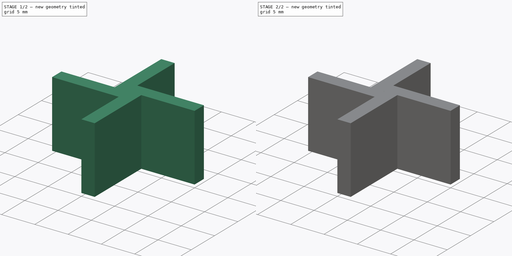
[diagram: build sequence overview — one tinted view per stage of 2, left to right]
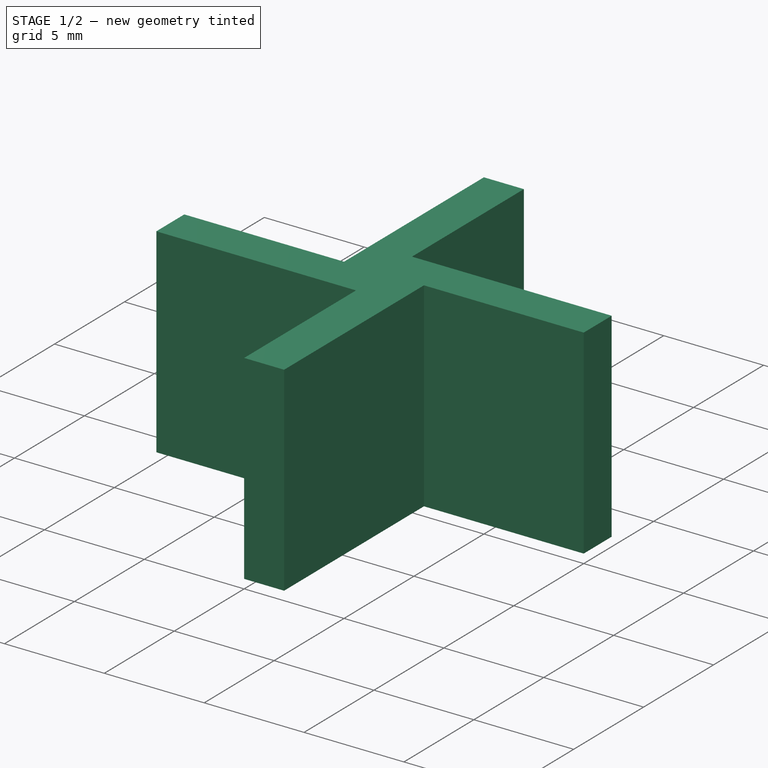
[diagram: stage 1 of 2 — iso view after this stage's code; geometry added in this stage tinted green]
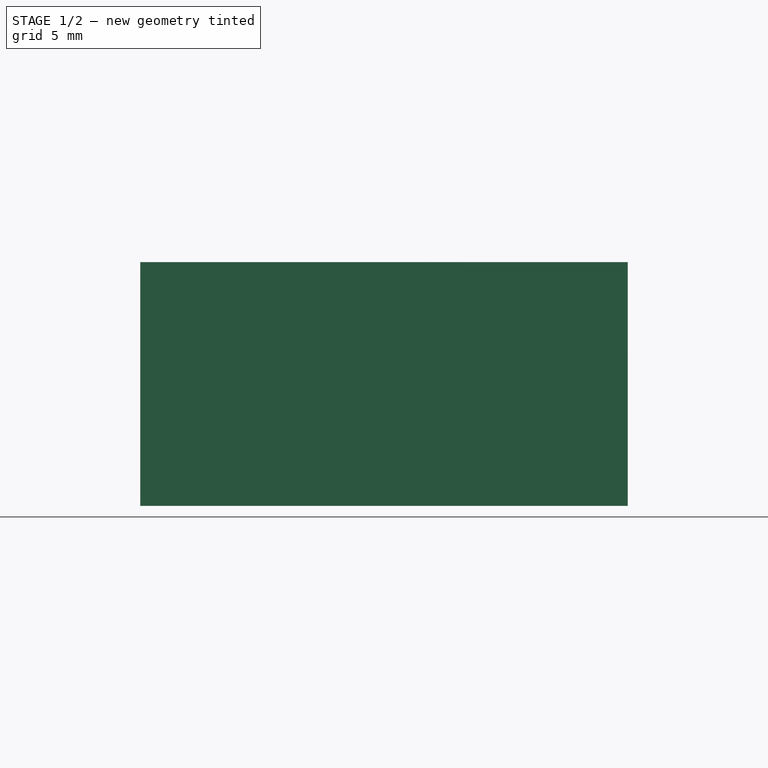
[diagram: stage 1 of 2 — front view after this stage's code; geometry added in this stage tinted green]
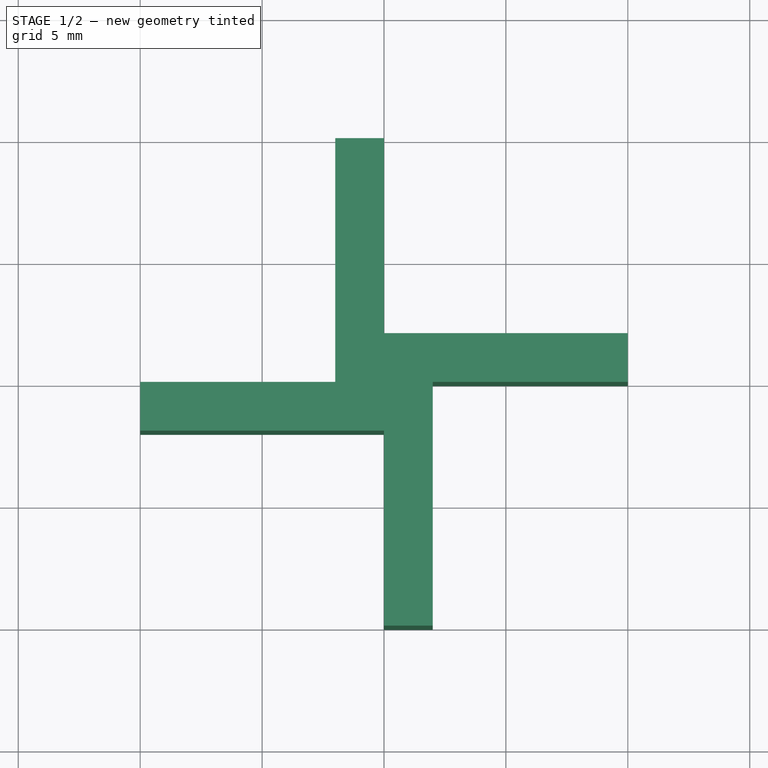
[diagram: stage 1 of 2 — top view after this stage's code; geometry added in this stage tinted green]
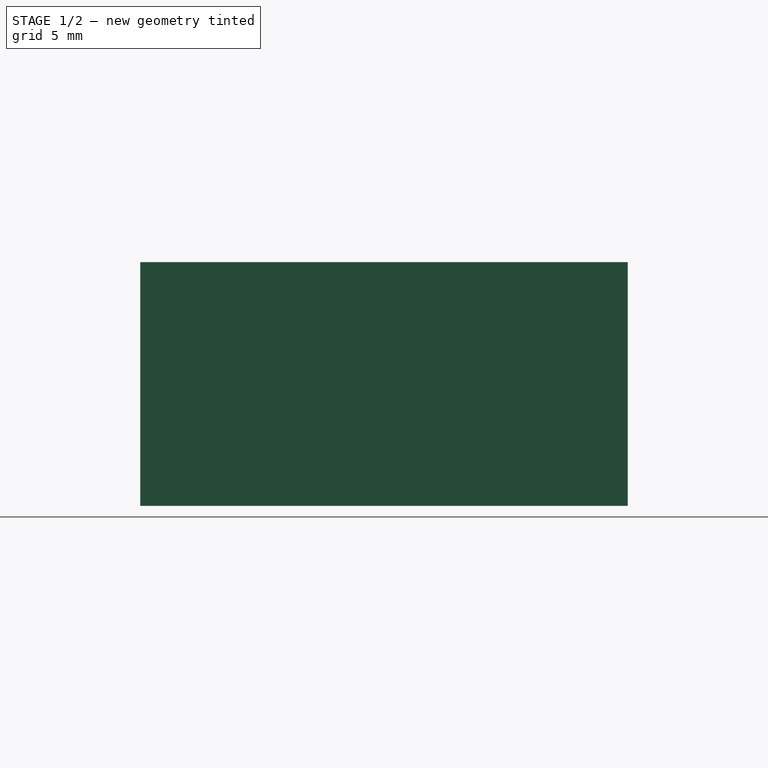
[diagram: stage 1 of 2 — right view after this stage's code; geometry added in this stage tinted green]
FCSTD DOCUMENT  (FreeCAD 0.19R24276 (Git))
Label: Std_XYMeasurementBlock
License: All rights reserved
LicenseURL: http://en.wikipedia.org/wiki/All_rights_reserved
objects: Sketcher::SketchObject×3, PartDesign::Pocket×2, PartDesign::Pad×1, PartDesign::Body×1, App::Part×1
note: 10 computed .brp shape members not serialized (recipe doc carries the construction recipe); baked Part::Feature solids carry a one-line shape summary decoded from their .brp

FEATURE [Sketcher::SketchObject] Sketch
  FullyConstrained = true
  MapMode = 5
  Support = -> [XY_Plane]
  sketch-geometry (6):
    g0: LineSegment StartX=-10 StartY=10 StartZ=0 EndX=10 EndY=10 EndZ=0
    g1: LineSegment StartX=10 StartY=10 StartZ=0 EndX=10 EndY=-10 EndZ=0
    g2: LineSegment StartX=10 StartY=-10 StartZ=0 EndX=-10 EndY=-10 EndZ=0
    g3: LineSegment StartX=-10 StartY=-10 StartZ=0 EndX=-10 EndY=10 EndZ=0
    g4: LineSegment StartX=0 StartY=0 StartZ=0 EndX=0 EndY=10 EndZ=0
    g5: LineSegment StartX=0 StartY=0 StartZ=0 EndX=10 EndY=0 EndZ=0
  constraints (16):
    c: Coincident(g0,g1)
    c: Coincident(g1,g2)
    c: Coincident(g2,g3)
    c: Coincident(g3,g0)
    c: Horizontal(g0)
    c: Horizontal(g2)
    c: Vertical(g1)
    c: Vertical(g3)
    c: Coincident(g4,g-1)
    c: PointOnObject(g4,g-2)
    c: Coincident(g5,g-1)
    c: PointOnObject(g5,g-1)
    c: Symmetric(g0,g0,g4)
    c: Symmetric(g0,g1,g5)
    c: Equal(g0,g1)
    c: Distance(g0) = 20
FEATURE [PartDesign::Pad] Pad
  Direction = (1,1,1)
  Length = 10
  Length2 = 100
  Profile = -> Sketch
  Type = 0
FEATURE [Sketcher::SketchObject] Sketch001
  FullyConstrained = true
  MapMode = 5
  Support = -> [XY_Plane]
  sketch-geometry (16):
    g0: LineSegment StartX=0 StartY=17 StartZ=0 EndX=15 EndY=17 EndZ=0
    g1: LineSegment StartX=15 StartY=17 StartZ=0 EndX=15 EndY=2 EndZ=0
    g2: LineSegment StartX=15 StartY=2 StartZ=0 EndX=0 EndY=2 EndZ=0
    g3: LineSegment StartX=0 StartY=2 StartZ=0 EndX=0 EndY=17 EndZ=0
    g4: LineSegment StartX=-17 StartY=0 StartZ=0 EndX=-2 EndY=0 EndZ=0
    g5: LineSegment StartX=-2 StartY=0 StartZ=0 EndX=-2 EndY=15 EndZ=0
    g6: LineSegment StartX=-2 StartY=15 StartZ=0 EndX=-17 EndY=15 EndZ=0
    g7: LineSegment StartX=-17 StartY=15 StartZ=0 EndX=-17 EndY=0 EndZ=0
    g8: LineSegment StartX=17 StartY=0 StartZ=0 EndX=2 EndY=0 EndZ=0
    g9: LineSegment StartX=2 StartY=0 StartZ=0 EndX=2 EndY=-15 EndZ=0
    g10: LineSegment StartX=2 StartY=-15 StartZ=0 EndX=17 EndY=-15 EndZ=0
    g11: LineSegment StartX=17 StartY=-15 StartZ=0 EndX=17 EndY=0 EndZ=0
    g12: LineSegment StartX=0 StartY=-17 StartZ=0 EndX=-15 EndY=-17 EndZ=0
    g13: LineSegment StartX=-15 StartY=-17 StartZ=0 EndX=-15 EndY=-2 EndZ=0
    g14: LineSegment StartX=-15 StartY=-2 StartZ=0 EndX=0 EndY=-2 EndZ=0
    g15: LineSegment StartX=0 StartY=-2 StartZ=0 EndX=0 EndY=-17 EndZ=0
  constraints (48):
    c: Coincident(g0,g1)
    c: Coincident(g1,g2)
    c: Coincident(g2,g3)
    c: Coincident(g3,g0)
    c: Horizontal(g0)
    c: Horizontal(g2)
    c: Vertical(g1)
    c: Vertical(g3)
    c: PointOnObject(g0,g-2)
    c: Coincident(g4,g5)
    c: Coincident(g5,g6)
    c: Coincident(g6,g7)
    c: Coincident(g7,g4)
    c: Horizontal(g4)
    c: Horizontal(g6)
    c: Vertical(g5)
    c: Vertical(g7)
    c: PointOnObject(g4,g-1)
    c: Coincident(g8,g9)
    c: Coincident(g9,g10)
    c: Coincident(g10,g11)
    c: Coincident(g11,g8)
    c: Horizontal(g8)
    c: Horizontal(g10)
    c: Vertical(g9)
    c: Vertical(g11)
    c: PointOnObject(g8,g-1)
    c: Coincident(g12,g13)
    c: Coincident(g13,g14)
    c: Coincident(g14,g15)
    c: Coincident(g15,g12)
    c: Horizontal(g12)
    c: Horizontal(g14)
    c: Vertical(g13)
    c: Vertical(g15)
    c: PointOnObject(g12,g-2)
    c: DistanceY(g8,g1) = 2
    c: DistanceY(g13,g4) = 2
    c: DistanceX(g12,g9) = 2
    c: DistanceX(g5,g0) = 2
    c: Equal(g6,g0)
    c: Equal(g7,g1)
    c: Equal(g6,g12)
    c: Equal(g0,g10)
    c: Equal(g13,g11)
    c: Equal(g11,g1)
    c: Distance(g6) = 15
    c: Distance(g1) = 15
FEATURE [PartDesign::Pocket] Pocket
  BaseFeature = -> Pad
  Length = 9
  Length2 = 100
  Profile = -> Sketch001
  Reversed = true
  Type = 1
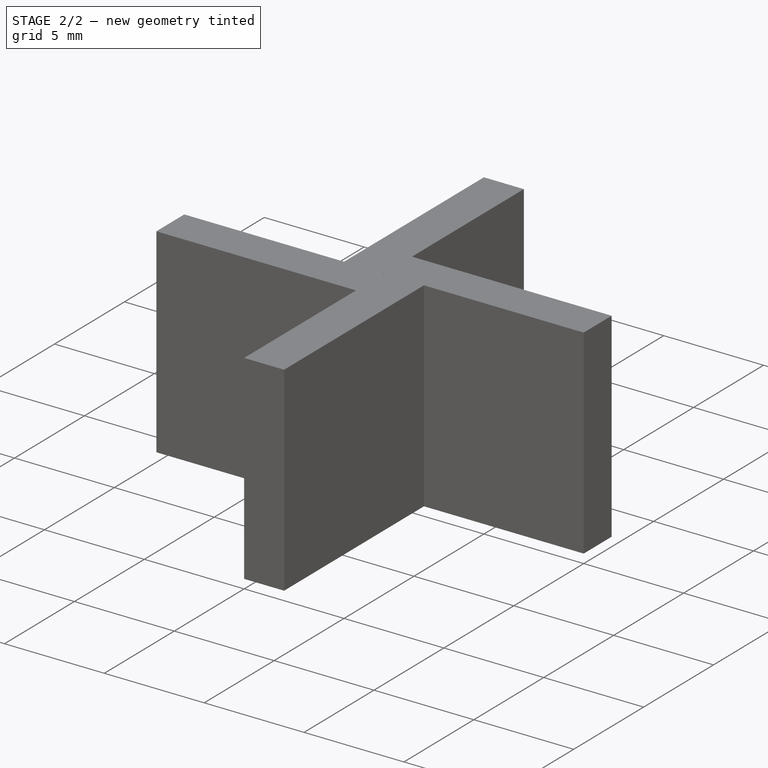
[diagram: stage 2 of 2 — iso view after this stage's code; geometry added in this stage tinted green]
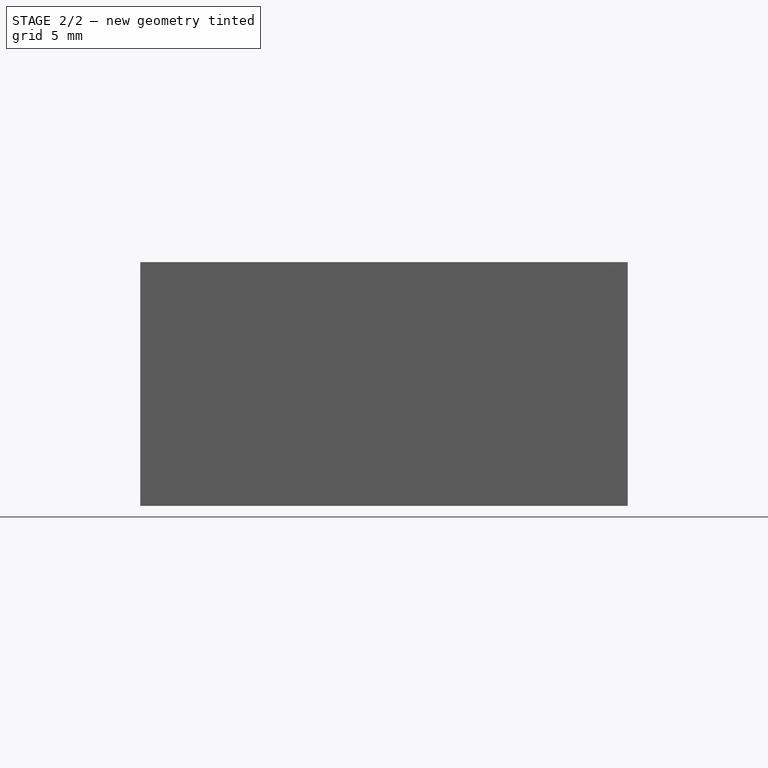
[diagram: stage 2 of 2 — front view after this stage's code; geometry added in this stage tinted green]
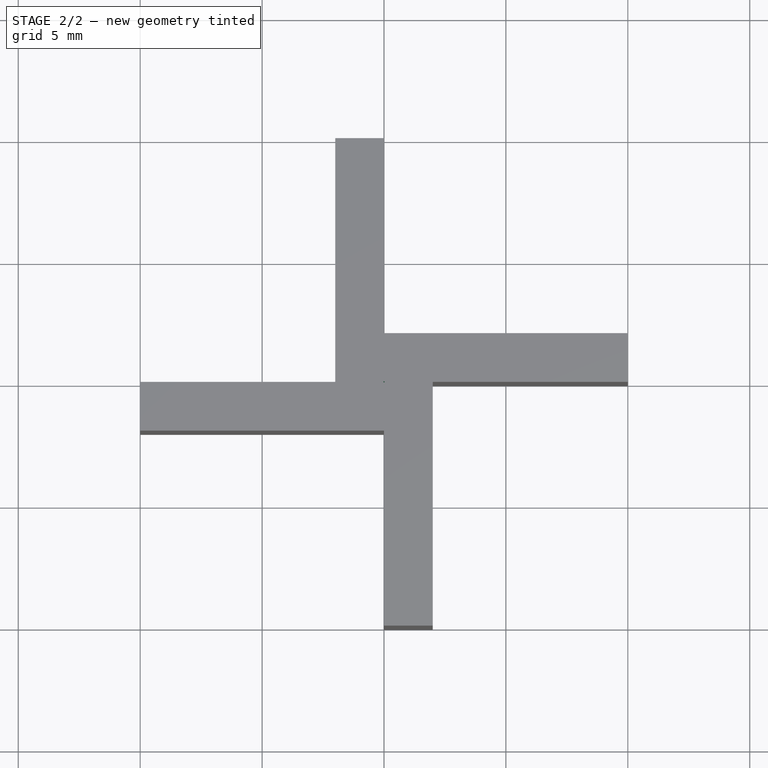
[diagram: stage 2 of 2 — top view after this stage's code; geometry added in this stage tinted green]
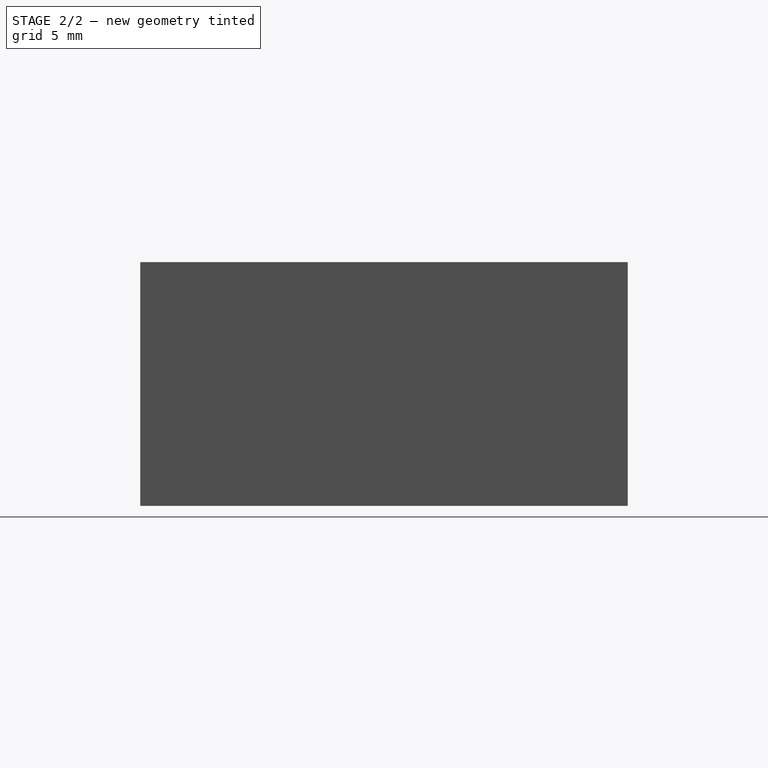
[diagram: stage 2 of 2 — right view after this stage's code; geometry added in this stage tinted green]
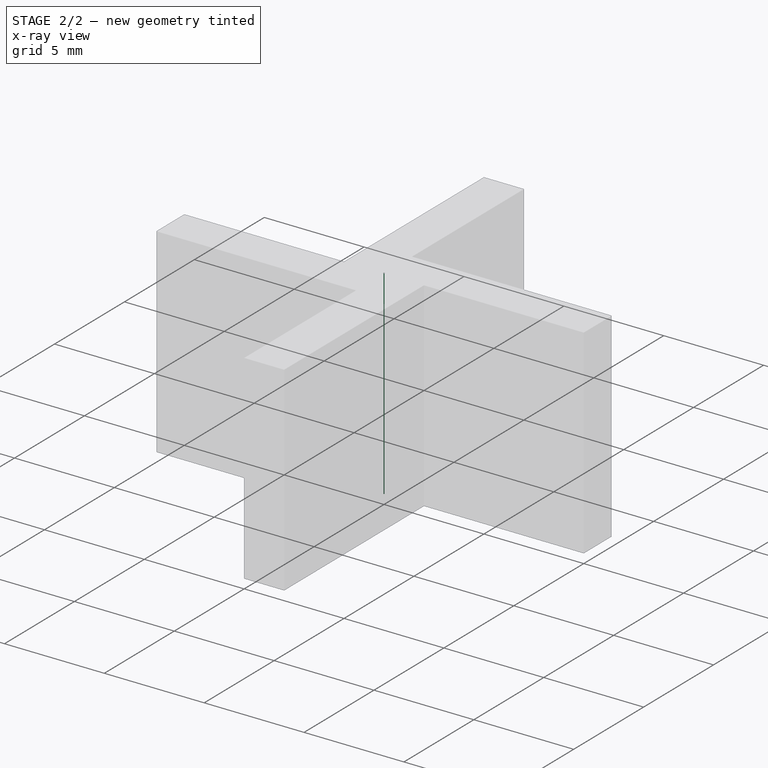
[diagram: stage 2 of 2 — x-ray composite at the iso view; earlier geometry ghosted, this stage's added geometry solid]
FEATURE [Sketcher::SketchObject] Sketch002
  FullyConstrained = true
  MapMode = 5
  Support = -> [XY_Plane001]
  sketch-geometry (1):
    g0: Circle CenterX=0 CenterY=0 CenterZ=0 NormalX=0 NormalY=0 NormalZ=1 AngleXU=0 Radius=0.025
  constraints (2):
    c: Coincident(g0,g-1)
    c: Diameter(g0) = 0.05
FEATURE [PartDesign::Pocket] Pocket001
  BaseFeature = -> Pocket
  Length = 5
  Length2 = 100
  Midplane = true
  Profile = -> Sketch002
  Type = 1
FEATURE [PartDesign::Body] Body  label="XYBlock"
  Group = -> [Sketch,Pad,Sketch001,Pocket,Sketch002,Pocket001]
  Origin = -> Origin001
  Tip = -> Pocket001
FEATURE [App::Part] Part  label="XYMeasBlock"
  Group = -> [Body]
  Origin = -> Origin
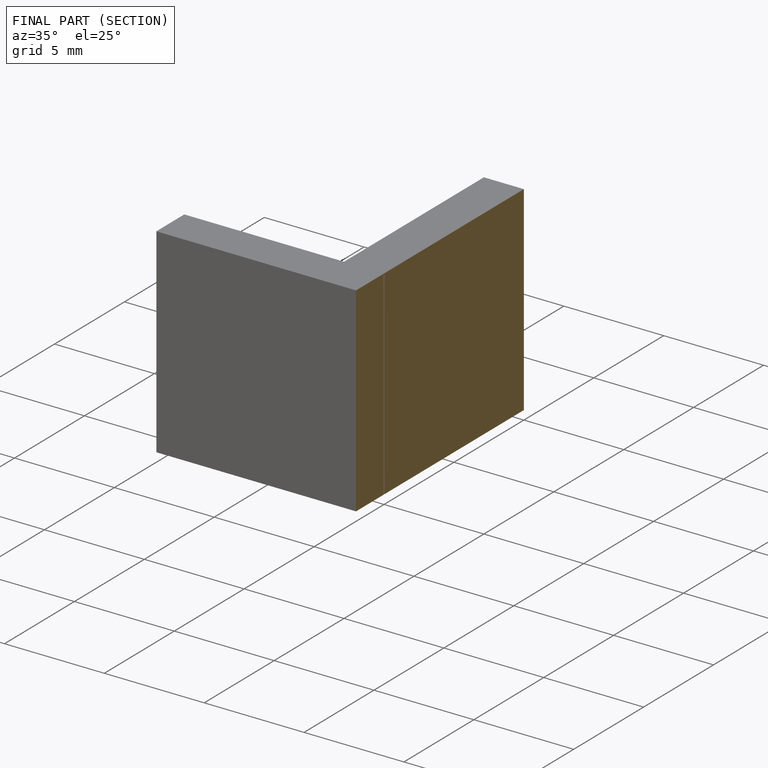
[diagram: finished part — half-section view (interior)]
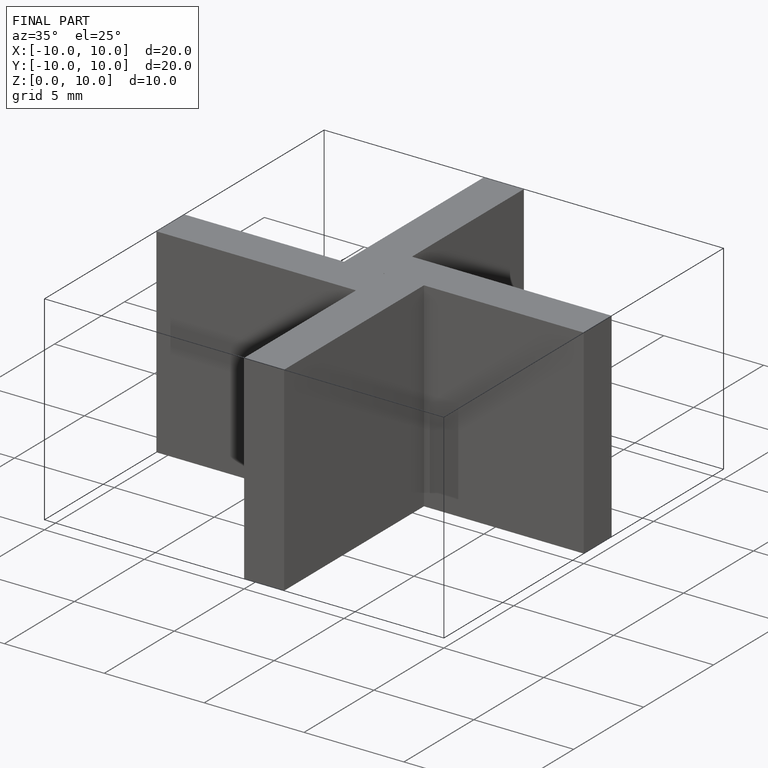
[diagram: finished part — iso view with bounding-box wireframe]
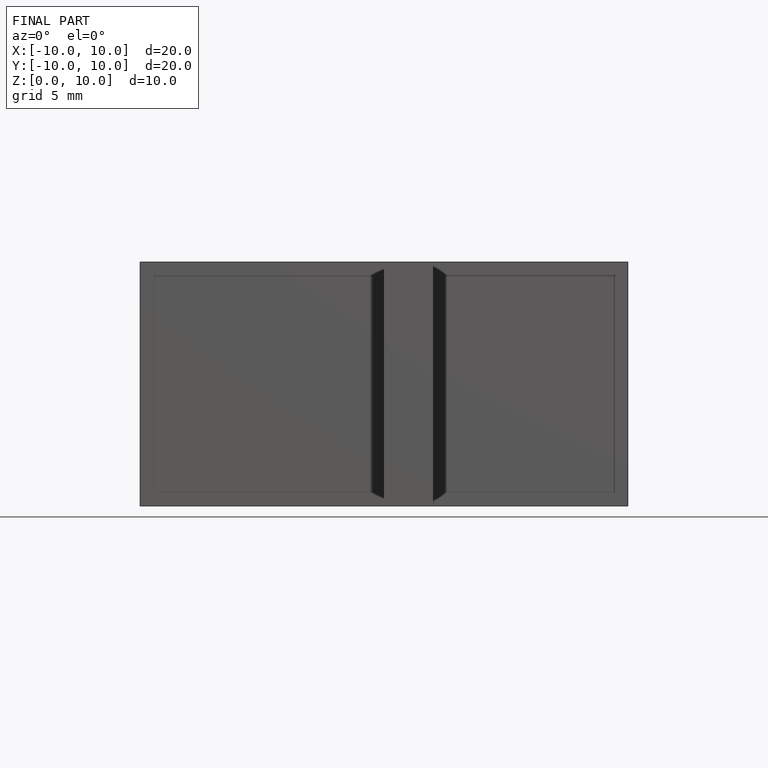
[diagram: finished part — front view with bounding-box wireframe]
